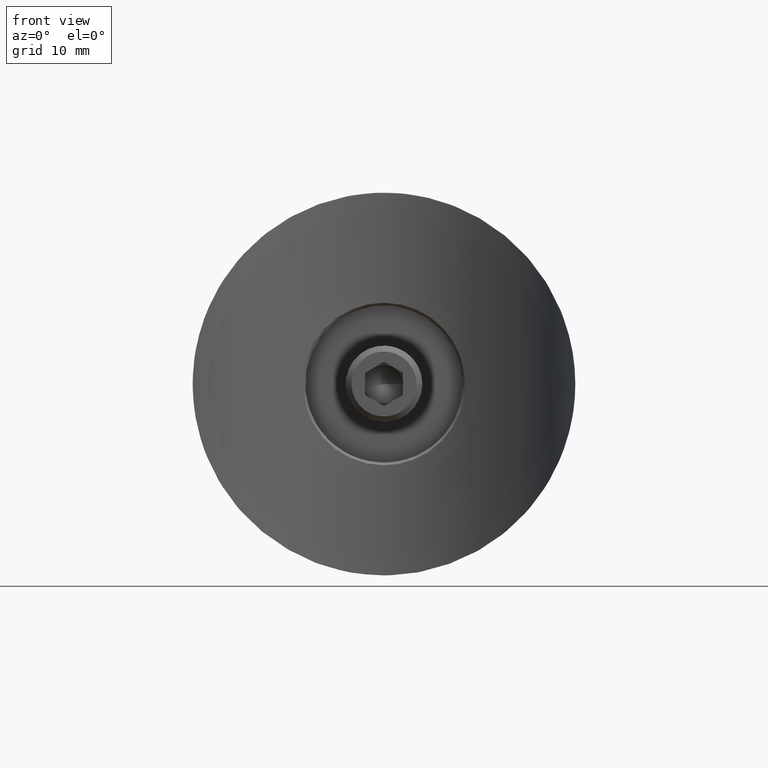
[diagram: clean part render]
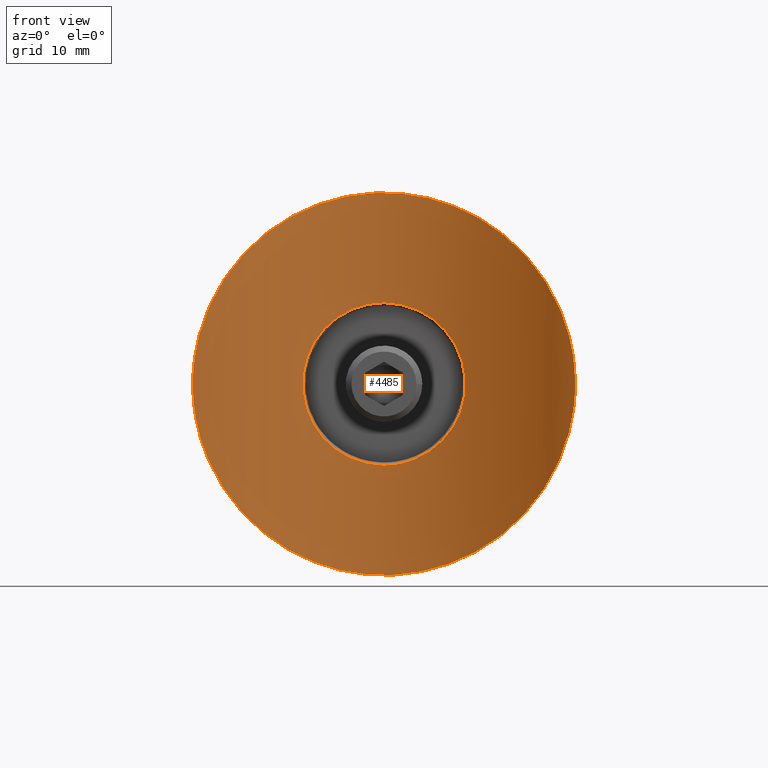
[diagram: same view with one face highlighted and labeled with its STEP entity id]
A machine part, front view. The second image highlights one B-rep face of the part: STEP entity #4485.
In plain terms, the highlighted cylindrical surface (partial cylindrical patch) has radius 21.2 mm, axis along (-0, -0, -1).
Its self-contained STEP definition (entity closure, byte-faithful):
#5 = CARTESIAN_POINT ( 'NONE',  ( 7.621291820724053423, -1.416784884848975912, 3.773990188857461181 ) ) ;
#34 = CARTESIAN_POINT ( 'NONE',  ( -0.3212517625965335966, 0.0007559221272324281697, 20.00080127770132776 ) ) ;
#78 = CARTESIAN_POINT ( 'NONE',  ( -1.423707661669336710, -0.04468498493483551159, 19.95262876967013455 ) ) ;
#288 = ORIENTED_EDGE ( 'NONE', *, *, #12341, .T. ) ;
#479 = CARTESIAN_POINT ( 'NONE',  ( -8.277433349939727236, -1.682631107330595288, 1.952415987674401610 ) ) ;
#548 = CARTESIAN_POINT ( 'NONE',  ( -20.00000000000001066, -14.16864166750126408, 0.000000000000000000 ) ) ;
#556 = CARTESIAN_POINT ( 'NONE',  ( -20.00000000000000355, -14.16864166750125520, -0.7438538045071343419 ) ) ;
#599 = CARTESIAN_POINT ( 'NONE',  ( -10.67129676124507576, -2.870034114313523510, -16.92819005594848036 ) ) ;
#768 = CARTESIAN_POINT ( 'NONE',  ( -19.95891271088634511, -14.04952605357424567, -1.460462933245232575 ) ) ;
#813 = CARTESIAN_POINT ( 'NONE',  ( 1.443042788460912274, -0.03664859779232368386, -19.96116567197127978 ) ) ;
#864 = CARTESIAN_POINT ( 'NONE',  ( 18.67303099744739825, -11.15113527214379729, 7.188747126023046441 ) ) ;
#926 = CARTESIAN_POINT ( 'NONE',  ( 16.09848629236730844, -7.394677405301776751, 11.88283824967515656 ) ) ;
#981 = CARTESIAN_POINT ( 'NONE',  ( 0.7013865843268883848, 0.0009540175825287750379, -20.00101125874969199 ) ) ;
#1031 = CARTESIAN_POINT ( 'NONE',  ( 19.41571021059040802, -12.68472683629726028, -4.809590501369070736 ) ) ;
#1091 = CARTESIAN_POINT ( 'NONE',  ( -19.80576347567701845, -13.63562562458948690, 2.867558343804631260 ) ) ;
#1108 = CARTESIAN_POINT ( 'NONE',  ( 4.968277474398418825, -0.5890497468730506725, 6.902326895114302197 ) ) ;
#1145 = CARTESIAN_POINT ( 'NONE',  ( -19.69467694030808858, -13.34595577992201321, 3.542547133079260391 ) ) ;
#1158 = CARTESIAN_POINT ( 'NONE',  ( 9.194034422446651330E-15, -4.222068554310746053E-15, 8.499999999999998224 ) ) ;
#1192 = CARTESIAN_POINT ( 'NONE',  ( -4.981900604686585687, -0.5812507076659891858, 19.38286685772382967 ) ) ;
#1204 = CARTESIAN_POINT ( 'NONE',  ( 2.225895971566283382, -0.1100202260544517890, 8.222379375202592655 ) ) ;
#1240 = CARTESIAN_POINT ( 'NONE',  ( -8.582388430382287936, -1.811952486804913054, 18.06817558892267783 ) ) ;
#1386 = CARTESIAN_POINT ( 'NONE',  ( -6.746751822399361664, -1.101360035086129230, -5.177616139209421320 ) ) ;
#1660 = CARTESIAN_POINT ( 'NONE',  ( -2.226121643886388224, -0.1098745313917340038, -8.222762932011113080 ) ) ;
#1710 = CARTESIAN_POINT ( 'NONE',  ( -4.512036591017315246, -0.4843787683525342946, -7.208882039359646221 ) ) ;
#1812 = CARTESIAN_POINT ( 'NONE',  ( -6.735722031230967133, -1.097659841480788323, 5.191931897190404932 ) ) ;
#2045 = CARTESIAN_POINT ( 'NONE',  ( 16.45215897161035201, -7.819186855976954398, -11.38767656949206497 ) ) ;
#2080 = CARTESIAN_POINT ( 'NONE',  ( 9.194034422446651330E-15, -4.222068554310746053E-15, 8.499999999999998224 ) ) ;
#2097 = CARTESIAN_POINT ( 'NONE',  ( 3.601992319121599451, -0.2960723389719750465, -19.68595700613442290 ) ) ;
#2138 = CARTESIAN_POINT ( 'NONE',  ( 13.70907561677181974, -4.988441781101143668, 14.61289565071479757 ) ) ;
#2191 = CARTESIAN_POINT ( 'NONE',  ( 18.88316143225521060, -11.55373589681965107, 6.619165848565370602 ) ) ;
#2248 = CARTESIAN_POINT ( 'NONE',  ( 19.98753685353072029, -14.13327530914729735, -0.7294908835457555307 ) ) ;
#2265 = CARTESIAN_POINT ( 'NONE',  ( 4.508602336738845473, -0.4836447156536343162, -7.210972228827156272 ) ) ;
#2298 = CARTESIAN_POINT ( 'NONE',  ( -17.41347919499220609, -9.062184775302181805, 9.908423975086908086 ) ) ;
#2312 = CARTESIAN_POINT ( 'NONE',  ( 0.5610872132716522298, -0.005550524586213793909, -8.486185900627589263 ) ) ;
#2344 = CARTESIAN_POINT ( 'NONE',  ( -9.783190704478061051, -2.389470524505219018, 17.44706311454105219 ) ) ;
#2409 = CARTESIAN_POINT ( 'NONE',  ( 2.757431076056735986, -0.1736613060474646864, -8.059551046182564349 ) ) ;
#2447 = CARTESIAN_POINT ( 'NONE',  ( -17.96716798978661345, -9.907694765512518487, 8.867489265264648424 ) ) ;
#2490 = CARTESIAN_POINT ( 'NONE',  ( -1.787020194496196979, -0.07234012291068590839, 19.92330747089745557 ) ) ;
#2801 = CARTESIAN_POINT ( 'NONE',  ( -5.618329250697586374, -0.7540232647858936543, 6.401942910092274452 ) ) ;
#2846 = CARTESIAN_POINT ( 'NONE',  ( -1.942553743514199738, -0.08738205455056810567, 8.279806422084073247 ) ) ;
#2893 = CARTESIAN_POINT ( 'NONE',  ( -6.209019916230938740, -0.9286067476117726427, -5.811552419861872210 ) ) ;
#2953 = CARTESIAN_POINT ( 'NONE',  ( -0.5604698750281501551, -1.063449865277774076E-15, -8.500000000000001776 ) ) ;
#3117 = CARTESIAN_POINT ( 'NONE',  ( -20.00000000000001066, -14.16864166750126586, 8.673617379884035472E-16 ) ) ;
#3174 = CARTESIAN_POINT ( 'NONE',  ( -19.84552734962819542, -13.74299572348365395, -2.505560089121992462 ) ) ;
#3219 = CARTESIAN_POINT ( 'NONE',  ( 19.25227465473083299, -12.32139646943794808, -5.426959037185787871 ) ) ;
#3266 = CARTESIAN_POINT ( 'NONE',  ( 7.024992678245461697, -1.185492971014122432, -18.73890500303700435 ) ) ;
#3324 = CARTESIAN_POINT ( 'NONE',  ( 8.907623749838556648, -1.950381120722234352, -17.91977040247244801 ) ) ;
#3381 = CARTESIAN_POINT ( 'NONE',  ( 9.537069230093182526, -2.255019603833719799, 17.59228382303989946 ) ) ;
#3394 = CARTESIAN_POINT ( 'NONE',  ( 0.2806400213181183267, -1.535953077687796305E-16, 8.500000000000012434 ) ) ;
#3428 = CARTESIAN_POINT ( 'NONE',  ( -2.921943097494895003, -0.1529622588425147978, -19.83807041537036397 ) ) ;
#3464 = EDGE_LOOP ( 'NONE', ( #12132 ) ) ;
#3550 = CARTESIAN_POINT ( 'NONE',  ( 7.738429193186371791, -1.462472219797137374, -3.527630093012841694 ) ) ;
#3619 = CARTESIAN_POINT ( 'NONE',  ( -20.00000000000001066, -14.16864166750126586, 8.673617379884035472E-16 ) ) ;
#3669 = B_SPLINE_CURVE_WITH_KNOTS ( 'NONE', 3,
 ( #9974, #2953, #8436, #1660, #6477, #5283, #11097, #4168, #1710, #10022, #11142, #2893, #4116, #1386, #13415, #14605, #12352, #14654, #5184, #5234, #13517, #7570, #14296, #4073, #10995, #479, #12399, #12288, #13111, #13466, #14714, #8855, #1812, #9822, #6067, #2801, #14563, #3971, #5133, #11051, #7511, #8701, #2846, #4015, #12235, #2080 ),
 .UNSPECIFIED., .F., .F.,
 ( 4, 2, 2, 2, 2, 2, 2, 2, 2, 2, 2, 2, 2, 2, 2, 2, 2, 2, 2, 2, 2, 2, 4 ),
 ( 0.04028013243214297046, 0.04195852779437958535, 0.04363692315661620719, 0.04447612083773451463, 0.04531531851885282208, 0.04699371388108943698, 0.04783291156220774443, 0.04867210924332605188, 0.05035050460556265983, 0.05202889996779927473, 0.05286809764891757524, 0.05370729533003587575, 0.05538569069227249064, 0.05622488837339079115, 0.05706408605450909166, 0.05874248141674570656, 0.05958167909786400707, 0.06042087677898230758, 0.06209927214121892247, 0.06377766750345553737, 0.06461686518457383788, 0.06545606286569213839, 0.06713445822792875328 ),
 .UNSPECIFIED. ) ;
#3971 = CARTESIAN_POINT ( 'NONE',  ( -4.267664309798698596, -0.4285802091505989120, 7.372008892279136028 ) ) ;
#4015 = CARTESIAN_POINT ( 'NONE',  ( -1.117251313148664993, -0.02226745538876742647, 8.444914874512956970 ) ) ;
#4073 = CARTESIAN_POINT ( 'NONE',  ( -8.499538887366325568, -1.778418217033196358, 0.5748261642085730205 ) ) ;
#4116 = CARTESIAN_POINT ( 'NONE',  ( -6.396193337684450420, -0.9870660373303744572, -5.604915684023445976 ) ) ;
#4168 = CARTESIAN_POINT ( 'NONE',  ( -4.272375810087714498, -0.4334568813835891210, -7.353536204121925657 ) ) ;
#4186 = CARTESIAN_POINT ( 'NONE',  ( -9.525934541221582563, -2.249517287062285931, -17.59820343822726585 ) ) ;
#4244 = CARTESIAN_POINT ( 'NONE',  ( -12.74452116528310341, -4.247792177149228188, -15.42621282774123515 ) ) ;
#4337 = CARTESIAN_POINT ( 'NONE',  ( -18.88809484199479272, -11.56345648507171653, -6.604974506932034473 ) ) ;
#4384 = CARTESIAN_POINT ( 'NONE',  ( 7.667837506907817513, -1.423805830398192418, -18.48426899051388261 ) ) ;
#4402 = CYLINDRICAL_SURFACE ( 'NONE', #14024, 21.19999999999999929 ) ;
#4434 = CARTESIAN_POINT ( 'NONE',  ( 19.95897499696880217, -14.04957822277978430, 1.463955949833976922 ) ) ;
#4480 = CARTESIAN_POINT ( 'NONE',  ( 10.36794238409684077, -2.705330591957435526, -17.10604587792376208 ) ) ;
#4485 = ADVANCED_FACE ( 'NONE', ( #11021, #14547 ), #4402, .F. ) ;
#4490 = VERTEX_POINT ( 'NONE', #10731 ) ;
#4524 = CARTESIAN_POINT ( 'NONE',  ( 19.16383612291161853, -12.13172280858550955, -5.731019258644068692 ) ) ;
#4537 = CARTESIAN_POINT ( 'NONE',  ( 5.822977487661685103, -0.8143689241134939305, 6.198268861424686804 ) ) ;
#4580 = CARTESIAN_POINT ( 'NONE',  ( 17.42224631646582722, -9.074649935857944882, -9.893239267418106664 ) ) ;
#4597 = CARTESIAN_POINT ( 'NONE',  ( 2.226721371302837760, -0.1100923152096699026, -8.222195976525577876 ) ) ;
#4636 = CARTESIAN_POINT ( 'NONE',  ( 2.950422548384595611, -0.1577959843931867612, 19.83293924604878455 ) ) ;
#4678 = CARTESIAN_POINT ( 'NONE',  ( -19.98718859834800554, -14.13228972184805521, 0.7391514785933475107 ) ) ;
#4689 = CARTESIAN_POINT ( 'NONE',  ( 6.752142206787621781, -1.101387218007736424, -5.192422528113329605 ) ) ;
#4724 = CARTESIAN_POINT ( 'NONE',  ( -7.008105109339631156, -1.179666498312528011, 18.74512592884875417 ) ) ;
#4843 = VERTEX_POINT ( 'NONE', #13558 ) ;
#5133 = CARTESIAN_POINT ( 'NONE',  ( -3.781309489899507437, -0.3335458485719420829, 7.632684949087811255 ) ) ;
#5184 = CARTESIAN_POINT ( 'NONE',  ( -8.224704794711552580, -1.660081771822823793, -2.216836653759001408 ) ) ;
#5234 = CARTESIAN_POINT ( 'NONE',  ( -8.388904560306382763, -1.730284449713417327, -1.397788862979989055 ) ) ;
#5283 = CARTESIAN_POINT ( 'NONE',  ( -3.530627506311944330, -0.2944529021457004125, -7.737036369942702052 ) ) ;
#5409 = CARTESIAN_POINT ( 'NONE',  ( -18.67598394816563001, -11.15649681240542357, -7.181373799001321778 ) ) ;
#5498 = VERTEX_POINT ( 'NONE', #548 ) ;
#5514 = CARTESIAN_POINT ( 'NONE',  ( -1.487572311761780286, -0.001964567381009640033, -19.99791755834841922 ) ) ;
#5563 = CARTESIAN_POINT ( 'NONE',  ( 19.98003232008477070, -14.11204017149825418, -0.9116049903818022049 ) ) ;
#5611 = CARTESIAN_POINT ( 'NONE',  ( 19.42250491849333116, -12.69521890598764280, 4.815885602217600869 ) ) ;
#5663 = CARTESIAN_POINT ( 'NONE',  ( 19.62778134725502710, -13.18615757134551991, -3.854562005284565718 ) ) ;
#5724 = CARTESIAN_POINT ( 'NONE',  ( 10.65019874997200411, -2.866544747162279361, -16.93163805794995014 ) ) ;
#5739 = CARTESIAN_POINT ( 'NONE',  ( 8.222776574858926324, -1.659262277443941169, -2.225206661473732250 ) ) ;
#5772 = CARTESIAN_POINT ( 'NONE',  ( -19.91986884554411574, -13.94391070804814703, 1.822529726429121144 ) ) ;
#5818 = CARTESIAN_POINT ( 'NONE',  ( -7.650667410228208176, -1.417118552810562981, 18.49142312820937661 ) ) ;
#5832 = CARTESIAN_POINT ( 'NONE',  ( 1.126852744682235619, -0.02809726690557841702, 8.429717086763234946 ) ) ;
#5886 = CARTESIAN_POINT ( 'NONE',  ( 0.5642290254663309135, -0.005639711125267372373, 8.485963285207361650 ) ) ;
#5922 = CARTESIAN_POINT ( 'NONE',  ( 5.740085814740922388, -0.7800100313007960473, 19.17138699386774547 ) ) ;
#5933 = CARTESIAN_POINT ( 'NONE',  ( 6.405599973878766562, -0.9868267283312840421, 5.614330216146111496 ) ) ;
#5964 = CARTESIAN_POINT ( 'NONE',  ( -16.44386085859462554, -7.809018180543581877, 11.39960397993303509 ) ) ;
#6067 = CARTESIAN_POINT ( 'NONE',  ( -6.200162387809712072, -0.9259061011020830456, 5.820920074448796555 ) ) ;
#6108 = DIRECTION ( 'NONE',  ( -0.000000000000000000, -0.000000000000000000, 1.000000000000000000 ) ) ;
#6477 = CARTESIAN_POINT ( 'NONE',  ( -2.762099288174607370, -0.1743079134600337421, -8.057856851225134065 ) ) ;
#6605 = CARTESIAN_POINT ( 'NONE',  ( -7.684224586050552475, -1.430175083774353872, -18.47745552695027627 ) ) ;
#6711 = CARTESIAN_POINT ( 'NONE',  ( 19.25809568781965808, -12.32588329445132302, 5.432576983919008562 ) ) ;
#6755 = CARTESIAN_POINT ( 'NONE',  ( -5.722258373922668007, -0.7750991681285920309, -19.17661527265284604 ) ) ;
#6817 = CARTESIAN_POINT ( 'NONE',  ( 4.995446604706759608, -0.5939068961774143229, -19.36936066409099766 ) ) ;
#6865 = CARTESIAN_POINT ( 'NONE',  ( 19.84514753276226529, -13.74197593025510677, -2.508813626769893279 ) ) ;
#6878 = CARTESIAN_POINT ( 'NONE',  ( 8.058700808947426353, -1.590061992075634034, 2.759101065638127626 ) ) ;
#6906 = CARTESIAN_POINT ( 'NONE',  ( 11.46528275717368395, -3.365071600098220816, -16.39055462795271723 ) ) ;
#6920 = CARTESIAN_POINT ( 'NONE',  ( 7.617709768707799256, -1.415402706466634353, -3.781232802364853818 ) ) ;
#6982 = CARTESIAN_POINT ( 'NONE',  ( 8.430717208957918984, -1.748421152407143575, 1.118746663108721062 ) ) ;
#7035 = CARTESIAN_POINT ( 'NONE',  ( 5.617813962621269752, -0.7537969460389176701, -6.402917932961617709 ) ) ;
#7082 = CARTESIAN_POINT ( 'NONE',  ( 1.404355717820432892, -0.04478196866688420597, 8.387837557101534003 ) ) ;
#7101 = ORIENTED_EDGE ( 'NONE', *, *, #13952, .T. ) ;
#7110 = CARTESIAN_POINT ( 'NONE',  ( 1.517591035247410236, -0.003278855372744287049, 19.99652441227884481 ) ) ;
#7161 = CARTESIAN_POINT ( 'NONE',  ( -2.869117852012113001, -0.1825316705057645483, 19.80642950592273621 ) ) ;
#7511 = CARTESIAN_POINT ( 'NONE',  ( -2.753701011371703533, -0.1778705588992128273, 8.046467528921290580 ) ) ;
#7570 = CARTESIAN_POINT ( 'NONE',  ( -8.486077563735557661, -1.772508921292269557, -0.5617567305139601341 ) ) ;
#7630 = CARTESIAN_POINT ( 'NONE',  ( -15.39768180609989479, -6.581445016064790821, -12.82300005358765738 ) ) ;
#7685 = CARTESIAN_POINT ( 'NONE',  ( -11.21515377510457157, -3.198677575831196496, -16.57196330418611296 ) ) ;
#7896 = CARTESIAN_POINT ( 'NONE',  ( 14.95987032480067569, -6.167680704464570063, 13.28800768574469693 ) ) ;
#7954 = CARTESIAN_POINT ( 'NONE',  ( 6.022266506073524539, -0.8703403972052009552, -19.07502494992828801 ) ) ;
#7999 = CARTESIAN_POINT ( 'NONE',  ( 17.97607563521586371, -9.922243992773443821, 8.848807391459180494 ) ) ;
#8041 = CARTESIAN_POINT ( 'NONE',  ( 19.68943620909323045, -13.33944393837015063, -3.527319629337382523 ) ) ;
#8060 = CARTESIAN_POINT ( 'NONE',  ( 5.193574190671934154, -0.6406645944369877554, -6.751240566669222787 ) ) ;
#8106 = CARTESIAN_POINT ( 'NONE',  ( 16.10490775549013875, -7.402093951351395695, -11.87424067976720288 ) ) ;
#8124 = CARTESIAN_POINT ( 'NONE',  ( 7.354466439216130524, -1.316046278921347179, -4.270719730957507565 ) ) ;
#8164 = CARTESIAN_POINT ( 'NONE',  ( -9.487619953148035634, -2.238568348512652850, 17.60963233688332252 ) ) ;
#8178 = CARTESIAN_POINT ( 'NONE',  ( 8.388776534885900915, -1.730227284757763551, -1.399045413604081300 ) ) ;
#8219 = CARTESIAN_POINT ( 'NONE',  ( 8.388859868513973694, -1.730262285761464902, 1.398788851836115787 ) ) ;
#8252 = CARTESIAN_POINT ( 'NONE',  ( -15.35339438223899045, -6.570548409619352270, 12.83104207595024526 ) ) ;
#8270 = CARTESIAN_POINT ( 'NONE',  ( 2.759646320195964897, -0.1738427246423583927, 8.059131001265194882 ) ) ;
#8304 = CARTESIAN_POINT ( 'NONE',  ( -3.580085020684024233, -0.2922228044257489943, 19.69004450233414971 ) ) ;
#8343 = CARTESIAN_POINT ( 'NONE',  ( -18.66807969551785717, -11.14183807784417546, 7.201782650322988921 ) ) ;
#8436 = CARTESIAN_POINT ( 'NONE',  ( -1.117811498892642419, -0.02219304772182383728, -8.445113691501065389 ) ) ;
#8701 = CARTESIAN_POINT ( 'NONE',  ( -2.217810377322362747, -0.1145995383377347021, 8.210348718797240153 ) ) ;
#8813 = CARTESIAN_POINT ( 'NONE',  ( -14.12995637163691143, -5.384753506799314415, -14.16770329939506290 ) ) ;
#8855 = CARTESIAN_POINT ( 'NONE',  ( -6.902447670117617839, -1.154477733945707740, 4.968173232126745553 ) ) ;
#9029 = CARTESIAN_POINT ( 'NONE',  ( -19.79873005548582654, -13.61893238227558989, -2.850736302597860927 ) ) ;
#9083 = CARTESIAN_POINT ( 'NONE',  ( 19.49092298864949768, -12.85881350541244394, -4.495705719769745201 ) ) ;
#9128 = CARTESIAN_POINT ( 'NONE',  ( 2.891184782372357098, -0.1854606137361844986, -19.80332189374783169 ) ) ;
#9184 = CARTESIAN_POINT ( 'NONE',  ( 15.35389579787638326, -6.571053466596526782, 12.83047113715763743 ) ) ;
#9246 = CARTESIAN_POINT ( 'NONE',  ( 19.99969880948881951, -14.16778496166663359, 0.7447450516048614855 ) ) ;
#9261 = CARTESIAN_POINT ( 'NONE',  ( 3.528011515585191216, -0.2940027504330613994, -7.738254457382797824 ) ) ;
#9296 = CARTESIAN_POINT ( 'NONE',  ( 18.67145296571582591, -11.14820013011578226, -7.192840719495753987 ) ) ;
#9312 = CARTESIAN_POINT ( 'NONE',  ( 8.059712900210046271, -1.590456788207857519, -2.756967495372999011 ) ) ;
#9340 = CARTESIAN_POINT ( 'NONE',  ( 5.046967591947403520, -0.5971372404721030369, 19.36596850698932570 ) ) ;
#9355 = CARTESIAN_POINT ( 'NONE',  ( 3.782008560809460018, -0.3385832139271973129, -7.617338288961780890 ) ) ;
#9441 = CARTESIAN_POINT ( 'NONE',  ( -19.25685029817863381, -12.32312195144103839, 5.437152721178563297 ) ) ;
#9454 = CARTESIAN_POINT ( 'NONE',  ( 5.617618768999726342, -0.7566310654765108223, 6.385077152635533437 ) ) ;
#9485 = CARTESIAN_POINT ( 'NONE',  ( -14.95439436037844061, -6.161919596673133270, 13.29456312023315512 ) ) ;
#9524 = CARTESIAN_POINT ( 'NONE',  ( -10.64607500609709767, -2.855288364241562071, 16.94415573867325975 ) ) ;
#9660 = CARTESIAN_POINT ( 'NONE',  ( 0.000000000000000000, -21.20000000000000284, -20.00000000000000711 ) ) ;
#9822 = CARTESIAN_POINT ( 'NONE',  ( -6.384880917630832542, -0.9834887579855136064, 5.617775696371923644 ) ) ;
#9974 = CARTESIAN_POINT ( 'NONE',  ( 9.194034422677076023E-15, -5.204170427930425228E-15, -8.499999999999996447 ) ) ;
#10022 = CARTESIAN_POINT ( 'NONE',  ( -5.200496475253594042, -0.6423594433134115489, -6.746158479846143585 ) ) ;
#10038 = CARTESIAN_POINT ( 'NONE',  ( -17.42209662239173795, -9.074741210686813275, -9.893041995524090026 ) ) ;
#10195 = CARTESIAN_POINT ( 'NONE',  ( -19.62839683349333697, -13.18768051117459095, -3.851338589216126707 ) ) ;
#10242 = CARTESIAN_POINT ( 'NONE',  ( 19.80497224913315435, -13.63347578257780057, 2.875225932643527216 ) ) ;
#10302 = CARTESIAN_POINT ( 'NONE',  ( 4.649435063501453413, -0.5130502811214568970, -19.45534801973172279 ) ) ;
#10355 = CARTESIAN_POINT ( 'NONE',  ( 5.681298637103876281, -0.7723617229028980624, -19.17940210517923916 ) ) ;
#10402 = CARTESIAN_POINT ( 'NONE',  ( 11.23335079084897004, -3.210064574946301708, 16.55959409739333310 ) ) ;
#10419 = CARTESIAN_POINT ( 'NONE',  ( 8.486381034963740078, -1.772641679168315276, -0.5572763735951520303 ) ) ;
#10459 = CARTESIAN_POINT ( 'NONE',  ( 19.99756830191633838, -14.16171261330238096, -0.3620061195834740619 ) ) ;
#10480 = CARTESIAN_POINT ( 'NONE',  ( 1.124582589780930064, -0.02797077685924121565, -8.430034638106125300 ) ) ;
#10520 = CARTESIAN_POINT ( 'NONE',  ( -19.99742450420848527, -14.16130339904403712, 0.3702244896288366394 ) ) ;
#10536 = CARTESIAN_POINT ( 'NONE',  ( 7.739938364149882233, -1.463069236331286493, 3.524156420165637904 ) ) ;
#10568 = CARTESIAN_POINT ( 'NONE',  ( -19.94938952526474907, -14.02605868761465580, 1.467647876184859035 ) ) ;
#10579 = CARTESIAN_POINT ( 'NONE',  ( 8.513753568978929209, -1.784657288725552737, 0.002334835804603767676 ) ) ;
#10604 = CARTESIAN_POINT ( 'NONE',  ( -16.09728486640397094, -7.393298988473003597, 11.88443434670810461 ) ) ;
#10616 = CARTESIAN_POINT ( 'NONE',  ( 7.214512450355135442, -1.264669886142805399, 4.503003369452032167 ) ) ;
#10654 = CARTESIAN_POINT ( 'NONE',  ( -13.68485833657768858, -4.966831981453246669, 14.63700547523736795 ) ) ;
#10731 = CARTESIAN_POINT ( 'NONE',  ( 9.194034422677076023E-15, -5.204170427930425228E-15, -8.499999999999996447 ) ) ;
#10995 = CARTESIAN_POINT ( 'NONE',  ( -8.442748024633226933, -1.753294078083891483, 1.131958479377981996 ) ) ;
#11021 = FACE_OUTER_BOUND ( 'NONE', #3464, .T. ) ;
#11051 = CARTESIAN_POINT ( 'NONE',  ( -3.015206289671504170, -0.2139252453266387299, 7.952048558600122163 ) ) ;
#11097 = CARTESIAN_POINT ( 'NONE',  ( -3.781446751790825900, -0.3384763590156754098, -7.617634162344971038 ) ) ;
#11142 = CARTESIAN_POINT ( 'NONE',  ( -5.624304674563818551, -0.7556255224041220631, -6.396989629778904174 ) ) ;
#11219 = CARTESIAN_POINT ( 'NONE',  ( -13.68312792312649684, -4.995920882665758178, -14.60009836194513255 ) ) ;
#11266 = CARTESIAN_POINT ( 'NONE',  ( -17.97521017978143831, -9.920410032357905195, -8.851544683566411109 ) ) ;
#11311 = CARTESIAN_POINT ( 'NONE',  ( -19.68997421424985461, -13.34078798627475848, -3.524389978297357562 ) ) ;
#11364 = CARTESIAN_POINT ( 'NONE',  ( -19.26155950853694421, -12.33346612399260600, -5.420160541580147928 ) ) ;
#11425 = CARTESIAN_POINT ( 'NONE',  ( 20.00007323066389020, -14.16884996468867897, -0.1760202316957727720 ) ) ;
#11464 = CARTESIAN_POINT ( 'NONE',  ( 19.79807153875043113, -13.61721666032202904, -2.855213712838476692 ) ) ;
#11516 = CARTESIAN_POINT ( 'NONE',  ( -5.037356094290672104, -0.5945655016694926243, -19.36870519412333991 ) ) ;
#11577 = CARTESIAN_POINT ( 'NONE',  ( 17.97419420847874605, -9.919233693739624158, -8.852615230754480535 ) ) ;
#11632 = CARTESIAN_POINT ( 'NONE',  ( 16.44921786800560071, -7.815486325336450157, 11.39204863318472150 ) ) ;
#11677 = CARTESIAN_POINT ( 'NONE',  ( 7.706650686282767282, -1.438970851100611181, 18.46804433813395718 ) ) ;
#11744 = CARTESIAN_POINT ( 'NONE',  ( 7.211903214182365573, -1.263729860765020030, -4.507118930320283212 ) ) ;
#11784 = CARTESIAN_POINT ( 'NONE',  ( 8.941554812782221973, -1.966192905354252840, 17.90278537003880288 ) ) ;
#11798 = CARTESIAN_POINT ( 'NONE',  ( 1.404318950652772235, -0.04477577903188339342, -8.387853537722865127 ) ) ;
#11826 = CARTESIAN_POINT ( 'NONE',  ( -19.97950652136286820, -14.11055620948361167, 0.9232293012150538658 ) ) ;
#12132 = ORIENTED_EDGE ( 'NONE', *, *, #14238, .T. ) ;
#12235 = CARTESIAN_POINT ( 'NONE',  ( -0.5614496524935008726, 6.606856988583372547E-17, 8.500000000000008882 ) ) ;
#12288 = CARTESIAN_POINT ( 'NONE',  ( -8.044305997189519886, -1.585284161554119997, 2.760059206217074568 ) ) ;
#12341 = EDGE_CURVE ( 'NONE', #4490, #4843, #3669, .T. ) ;
#12352 = CARTESIAN_POINT ( 'NONE',  ( -7.630779772023582375, -1.419579514080762106, -3.786205294829115164 ) ) ;
#12399 = CARTESIAN_POINT ( 'NONE',  ( -8.208868597775959230, -1.653583122632251934, 2.223344809670936950 ) ) ;
#12416 = CARTESIAN_POINT ( 'NONE',  ( -8.923165290579799347, -1.957588355300366567, -17.91202923837164818 ) ) ;
#12615 = CARTESIAN_POINT ( 'NONE',  ( 18.88192598282068246, -11.55127283814888983, -6.622813445532601762 ) ) ;
#12666 = CARTESIAN_POINT ( 'NONE',  ( 12.76520261225086195, -4.228032583897039842, -15.44983617031983769 ) ) ;
#12728 = CARTESIAN_POINT ( 'NONE',  ( 19.92117120023515042, -13.94748721938968750, -1.808580775605003188 ) ) ;
#12771 = CARTESIAN_POINT ( 'NONE',  ( 13.69692561702150435, -4.977475170995544929, -14.62514911639302717 ) ) ;
#12786 = CARTESIAN_POINT ( 'NONE',  ( 4.272115190378698912, -0.4334082989910998940, -7.353670047170649759 ) ) ;
#12822 = CARTESIAN_POINT ( 'NONE',  ( -11.19162170413695456, -3.184010673399846336, 16.58789186928589743 ) ) ;
#12837 = CARTESIAN_POINT ( 'NONE',  ( 8.222053965960153477, -1.658954613428030189, 2.228485845407158106 ) ) ;
#12876 = CARTESIAN_POINT ( 'NONE',  ( -8.887592078320817990, -1.950025202645902178, 17.91995509104162920 ) ) ;
#12890 = CARTESIAN_POINT ( 'NONE',  ( 0.2801502805772723703, -1.514424323611751214E-15, -8.499999999999998224 ) ) ;
#12922 = B_SPLINE_CURVE_WITH_KNOTS ( 'NONE', 3,
 ( #1158, #3394, #5886, #5832, #7082, #1204, #8270, #14034, #14129, #1108, #15203, #9454, #4537, #5933, #12936, #10616, #13981, #5, #10536, #6878, #12837, #8219, #6982, #14082, #10579, #10419, #15099, #8178, #5739, #9312, #3550, #6920, #8124, #11744, #4689, #15256, #7035, #8060, #2265, #12786, #9355, #9261, #2409, #4597, #11798, #10480, #2312, #12890, #12982 ),
 .UNSPECIFIED., .F., .F.,
 ( 4, 2, 2, 2, 2, 2, 2, 2, 2, 2, 2, 2, 1, 2, 2, 2, 2, 2, 2, 2, 2, 2, 2, 2, 4 ),
 ( 0.01343391913290170776, 0.01427286329850299684, 0.01511180746410428592, 0.01678969579530686582, 0.01846758412650944398, 0.01930652829211073132, 0.02014547245771201867, 0.02182336078891459683, 0.02266230495451588417, 0.02350124912011717498, 0.02517913745131975661, 0.02601808161692104743, 0.02685702578252233824, 0.02769596994812362906, 0.02853491411372491640, 0.03021280244492749456, 0.03105174661052877844, 0.03189069077613006925, 0.03356857910733265088, 0.03524646743853523251, 0.03608541160413651638, 0.03692435576973780720, 0.03860224410094038883, 0.03944118826654167964, 0.04028013243214297046 ),
 .UNSPECIFIED. ) ;
#12936 = CARTESIAN_POINT ( 'NONE',  ( 6.753364650353310239, -1.101781858121797519, 5.191048339773074893 ) ) ;
#12982 = CARTESIAN_POINT ( 'NONE',  ( 9.194034422677076023E-15, -5.204170427930425228E-15, -8.499999999999996447 ) ) ;
#13014 = CARTESIAN_POINT ( 'NONE',  ( 7.067282155625286499, -1.200547547116534552, 18.72282530394414479 ) ) ;
#13111 = CARTESIAN_POINT ( 'NONE',  ( -7.948467763655715501, -1.546115132914487544, 3.024745109761400208 ) ) ;
#13113 = B_SPLINE_CURVE_WITH_KNOTS ( 'NONE', 3,
 ( #3117, #556, #768, #3174, #9029, #11311, #10195, #13533, #11364, #4337, #5409, #11266, #10038, #14675, #7630, #8813, #11219, #4244, #14732, #7685, #599, #4186, #12416, #6605, #13965, #6755, #11516, #3428, #5514, #981, #813, #9128, #2097, #10302, #6817, #10355, #7954, #3266, #4384, #3324, #13812, #4480, #5724, #15139, #6906, #12666, #12771, #15030, #13866, #8106, #2045, #4580, #11577, #9296, #12615, #4524, #3219, #1031, #9083, #5663, #8041, #11464, #6865, #12728, #13913, #5563, #2248, #10459, #11425, #9246, #4434, #10242, #13749, #5611, #6711, #2191, #864, #7999, #14981, #11632, #926, #9184, #7896, #2138, #15083, #10402, #14933, #3381, #11784, #11677, #13014, #5922, #9340, #4636, #7110, #34, #15192, #78, #2490, #7161, #8304, #1192, #14214, #4724, #5818, #1240, #12876, #8164, #2344, #9524, #12822, #14163, #10654, #9485, #8252, #10604, #5964, #2298, #2447, #8343, #14068, #9441, #15239, #1145, #1091, #5772, #10568, #11826, #4678, #10520, #14019, #3619 ),
 .UNSPECIFIED., .T., .F.,
 ( 4, 2, 2, 2, 2, 2, 2, 2, 2, 2, 2, 2, 2, 2, 2, 2, 2, 2, 2, 2, 2, 2, 2, 2, 2, 2, 2, 2, 2, 2, 2, 2, 2, 2, 2, 2, 2, 2, 2, 2, 2, 2, 2, 2, 2, 2, 2, 2, 2, 2, 2, 2, 2, 2, 2, 2, 2, 2, 2, 2, 2, 2, 2, 2, 2, 4 ),
 ( 0.000000000000000000, 0.002181135063487500258, 0.003271702595231248435, 0.004362270126974997046, 0.006543405190462489064, 0.008724540253949981949, 0.01308681038092496599, 0.01744908050789994308, 0.01963021557138744030, 0.02181135063487493406, 0.02399248569836242434, 0.02617362076184991809, 0.02835475582533740491, 0.03053589088882489519, 0.03489816101579987229, 0.03707929607928736604, 0.03926043114277485285, 0.04035099867451861361, 0.04144156620626236048, 0.04362270126974985424, 0.04580383633323734105, 0.04689440386498109486, 0.04798497139672484174, 0.05234724152369982231, 0.05452837658718730218, 0.05670951165067478900, 0.06107178177764975568, 0.06325291684113723556, 0.06434348437288096856, 0.06543405190462471543, 0.06652461943636846231, 0.06761518696811220919, 0.06870575449985594219, 0.06925103826572780175, 0.06979632203159967518, 0.07197745709508714118, 0.07415859215857460718, 0.07633972722206207318, 0.07852086228554953917, 0.08288313241252449892, 0.08506426747601197880, 0.08724540253949944479, 0.09160767266647439067, 0.09378880772996185666, 0.09596994279344932266, 0.09815107785693680253, 0.1003322129204242824, 0.1046944830473992283, 0.1057850505791429613, 0.1068756181108866943, 0.1090567531743741603, 0.1112378882378616263, 0.1134190233013490923, 0.1145095908330928391, 0.1156001583648365721, 0.1177812934283240659, 0.1221435635552990118, 0.1243246986187864916, 0.1265058336822739715, 0.1308681038092489313, 0.1330492388727364528, 0.1352303739362239188, 0.1374115089997114125, 0.1385020765314551594, 0.1390473602973270328, 0.1395926440631989063 ),
 .UNSPECIFIED. ) ;
#13415 = CARTESIAN_POINT ( 'NONE',  ( -6.910655593339299685, -1.157317827441795899, -4.956642766945646095 ) ) ;
#13466 = CARTESIAN_POINT ( 'NONE',  ( -7.626661819736784587, -1.418004394867599105, 3.793800279794309116 ) ) ;
#13517 = CARTESIAN_POINT ( 'NONE',  ( -8.430390495619452196, -1.748279301759095627, -1.121427275119915024 ) ) ;
#13533 = CARTESIAN_POINT ( 'NONE',  ( -19.42396459858453284, -12.69855878986711417, -4.810060706523267449 ) ) ;
#13558 = CARTESIAN_POINT ( 'NONE',  ( 9.194034422446651330E-15, -4.222068554310746053E-15, 8.499999999999998224 ) ) ;
#13749 = CARTESIAN_POINT ( 'NONE',  ( 19.69529329495819425, -13.34758503442778732, 3.538625929385478486 ) ) ;
#13812 = CARTESIAN_POINT ( 'NONE',  ( 9.504539276805724413, -2.238675249165565262, -17.60987997023239870 ) ) ;
#13866 = CARTESIAN_POINT ( 'NONE',  ( 15.35812788088658465, -6.575425710998819895, -12.82550402628368680 ) ) ;
#13913 = CARTESIAN_POINT ( 'NONE',  ( 19.95039960971509885, -14.02887598900819555, -1.453415320258345522 ) ) ;
#13952 = EDGE_CURVE ( 'NONE', #4843, #4490, #12922, .T. ) ;
#13965 = CARTESIAN_POINT ( 'NONE',  ( -7.044712711932672455, -1.192680397013605509, -18.73122625509618189 ) ) ;
#13981 = CARTESIAN_POINT ( 'NONE',  ( 7.358753207329630897, -1.317634935888760239, 4.263313523052652876 ) ) ;
#14019 = CARTESIAN_POINT ( 'NONE',  ( -20.00000000000001421, -14.16864166750126763, 0.1859634511267820034 ) ) ;
#14024 = AXIS2_PLACEMENT_3D ( 'NONE', #9660, #6108, #14289 ) ;
#14034 = CARTESIAN_POINT ( 'NONE',  ( 3.795726598999818791, -0.3359784038097896053, 7.626119582970762423 ) ) ;
#14068 = CARTESIAN_POINT ( 'NONE',  ( -18.88069321341808759, -11.54885130794066939, 6.626336612387733638 ) ) ;
#14082 = CARTESIAN_POINT ( 'NONE',  ( 8.486110071575199143, -1.772523370889078187, 0.5608231510432825084 ) ) ;
#14129 = CARTESIAN_POINT ( 'NONE',  ( 4.282202665099397620, -0.4316840852954491603, 7.363173965997774850 ) ) ;
#14163 = CARTESIAN_POINT ( 'NONE',  ( -12.74985085080135327, -4.216644194357811237, 15.46232567969132532 ) ) ;
#14214 = CARTESIAN_POINT ( 'NONE',  ( -5.675915445119477099, -0.7620139298854561316, 19.19055150775516339 ) ) ;
#14238 = EDGE_CURVE ( 'NONE', #5498, #5498, #13113, .T. ) ;
#14289 = DIRECTION ( 'NONE',  ( 1.000000000000000000, 0.000000000000000000, 0.000000000000000000 ) ) ;
#14296 = CARTESIAN_POINT ( 'NONE',  ( -8.500226404683900228, -1.778719117120654225, -0.2771239313780630154 ) ) ;
#14547 = FACE_BOUND ( 'NONE', #14883, .T. ) ;
#14563 = CARTESIAN_POINT ( 'NONE',  ( -5.192103544964554729, -0.6401629489145442831, 6.752890828921994881 ) ) ;
#14605 = CARTESIAN_POINT ( 'NONE',  ( -7.369108357351027649, -1.319322958778375909, -4.271781245930620585 ) ) ;
#14654 = CARTESIAN_POINT ( 'NONE',  ( -8.061872384995922403, -1.591327220412446453, -2.751429466978288829 ) ) ;
#14675 = CARTESIAN_POINT ( 'NONE',  ( -16.13322401897293545, -7.406145057258117781, -11.87942815958711229 ) ) ;
#14714 = CARTESIAN_POINT ( 'NONE',  ( -7.365102736428257302, -1.317790648114081975, 4.279179605296807409 ) ) ;
#14732 = CARTESIAN_POINT ( 'NONE',  ( -12.25178114035703913, -3.887543729819370686, -15.82098292911427961 ) ) ;
#14883 = EDGE_LOOP ( 'NONE', ( #7101, #288 ) ) ;
#14933 = CARTESIAN_POINT ( 'NONE',  ( 10.68703006862322979, -2.879100458136404583, 16.91837840699645668 ) ) ;
#14981 = CARTESIAN_POINT ( 'NONE',  ( 17.42340351031308643, -9.075936769288423633, 9.891772957192978666 ) ) ;
#15030 = CARTESIAN_POINT ( 'NONE',  ( 14.95885199439032931, -6.166478529419801013, -13.28939187918929754 ) ) ;
#15083 = CARTESIAN_POINT ( 'NONE',  ( 12.78461375755284912, -4.243071108786606871, 15.43330676533565438 ) ) ;
#15099 = CARTESIAN_POINT ( 'NONE',  ( 8.430925511142410400, -1.748511382874871289, -1.117459195106330405 ) ) ;
#15139 = CARTESIAN_POINT ( 'NONE',  ( 11.19845773995333715, -3.196198757812630742, -16.57412576837171869 ) ) ;
#15192 = CARTESIAN_POINT ( 'NONE',  ( -0.6916896111209580589, -0.008118007727465894816, 19.99139574437041489 ) ) ;
#15203 = CARTESIAN_POINT ( 'NONE',  ( 5.189636127448800984, -0.6438172101059514985, 6.737546121816498257 ) ) ;
#15239 = CARTESIAN_POINT ( 'NONE',  ( -19.42035002056327286, -12.69022236055184116, 4.824929538552837904 ) ) ;
#15256 = CARTESIAN_POINT ( 'NONE',  ( 6.401723499062324407, -0.9855252533244578395, -5.619175029879137639 ) ) ;